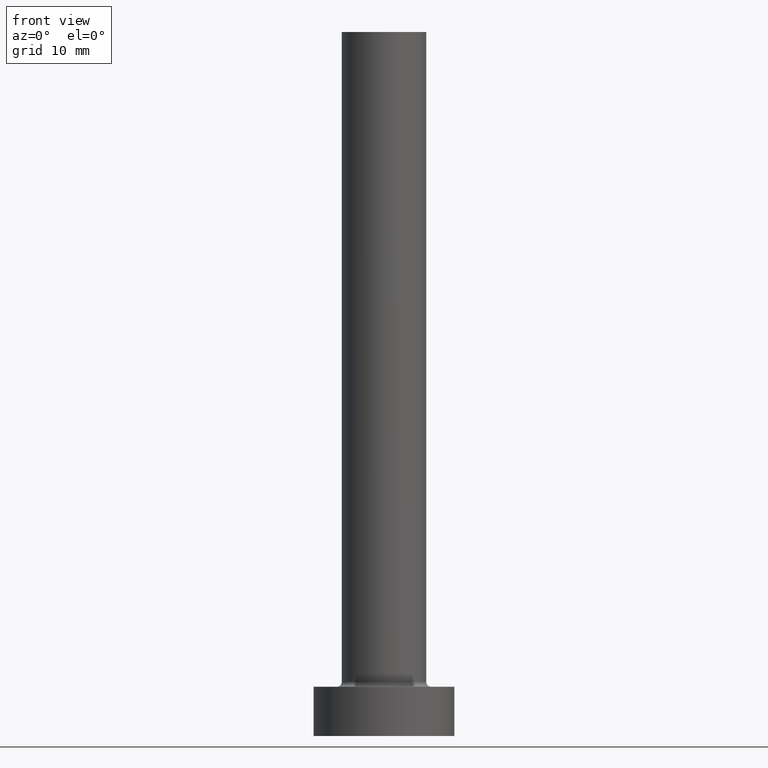
[diagram: clean part render]
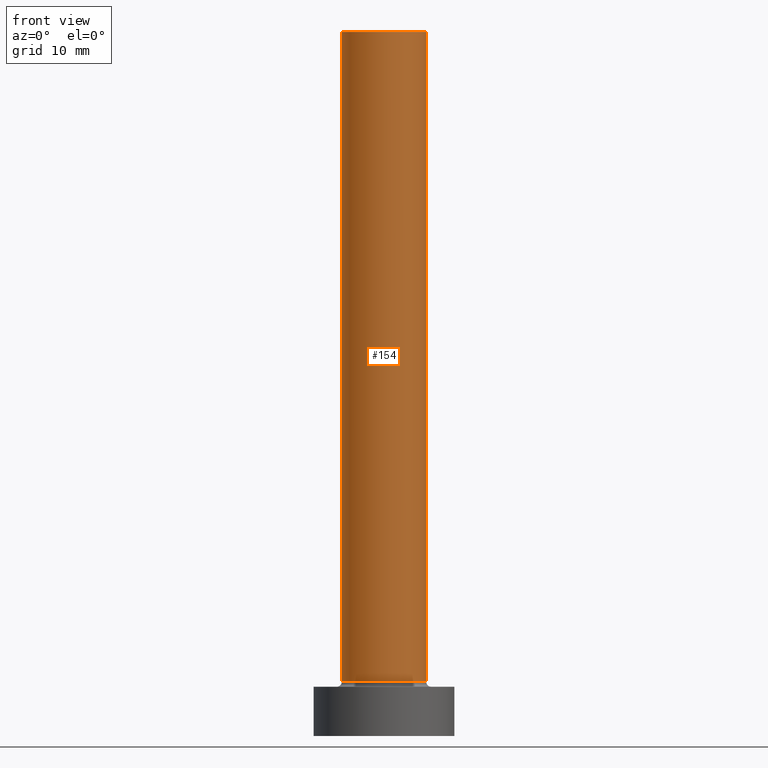
[diagram: same view with one face highlighted and labeled with its STEP entity id]
A machine part, front view. The second image highlights one B-rep face of the part: STEP entity #154.
In plain terms, the highlighted cylindrical surface (partial cylindrical patch) has radius 6 mm, axis along (-0, -0, -1).
Its self-contained STEP definition (entity closure, byte-faithful):
#8 = VERTEX_POINT ( 'NONE', #224 ) ;
#20 = ORIENTED_EDGE ( 'NONE', *, *, #203, .T. ) ;
#31 = EDGE_CURVE ( 'NONE', #139, #153, #425, .T. ) ;
#48 = VECTOR ( 'NONE', #378, 1000.000000000000000 ) ;
#70 = DIRECTION ( 'NONE',  ( 0.000000000000000000, 0.000000000000000000, 1.000000000000000000 ) ) ;
#99 = VECTOR ( 'NONE', #199, 1000.000000000000000 ) ;
#110 = CYLINDRICAL_SURFACE ( 'NONE', #133, 6.000000000000000888 ) ;
#133 = AXIS2_PLACEMENT_3D ( 'NONE', #183, #350, #161 ) ;
#136 = VERTEX_POINT ( 'NONE', #367 ) ;
#139 = VERTEX_POINT ( 'NONE', #334 ) ;
#153 = VERTEX_POINT ( 'NONE', #438 ) ;
#154 = ADVANCED_FACE ( 'NONE', ( #364 ), #110, .T. ) ;
#161 = DIRECTION ( 'NONE',  ( -1.000000000000000000, 0.000000000000000000, 0.000000000000000000 ) ) ;
#183 = CARTESIAN_POINT ( 'NONE',  ( 0.000000000000000000, 0.000000000000000000, 100.0000000000000000 ) ) ;
#192 = CARTESIAN_POINT ( 'NONE',  ( 0.000000000000000000, 0.000000000000000000, 100.0000000000000000 ) ) ;
#197 = CARTESIAN_POINT ( 'NONE',  ( -6.000000000000000888, 0.000000000000000000, 100.0000000000000000 ) ) ;
#199 = DIRECTION ( 'NONE',  ( -0.000000000000000000, -0.000000000000000000, -1.000000000000000000 ) ) ;
#202 = CARTESIAN_POINT ( 'NONE',  ( 0.000000000000000000, 0.000000000000000000, 7.699999999999998401 ) ) ;
#203 = EDGE_CURVE ( 'NONE', #139, #8, #405, .T. ) ;
#224 = CARTESIAN_POINT ( 'NONE',  ( -6.000000000000000888, 0.000000000000000000, 7.699999999999998401 ) ) ;
#233 = ORIENTED_EDGE ( 'NONE', *, *, #31, .F. ) ;
#274 = ORIENTED_EDGE ( 'NONE', *, *, #294, .T. ) ;
#276 = EDGE_LOOP ( 'NONE', ( #420, #233, #20, #274 ) ) ;
#285 = AXIS2_PLACEMENT_3D ( 'NONE', #192, #70, #430 ) ;
#294 = EDGE_CURVE ( 'NONE', #8, #136, #433, .T. ) ;
#319 = DIRECTION ( 'NONE',  ( 1.000000000000000000, 0.000000000000000000, 0.000000000000000000 ) ) ;
#334 = CARTESIAN_POINT ( 'NONE',  ( -6.000000000000000888, 0.000000000000000000, 100.0000000000000000 ) ) ;
#350 = DIRECTION ( 'NONE',  ( -0.000000000000000000, -0.000000000000000000, -1.000000000000000000 ) ) ;
#364 = FACE_OUTER_BOUND ( 'NONE', #276, .T. ) ;
#367 = CARTESIAN_POINT ( 'NONE',  ( 6.000000000000000888, 7.347880794884119736E-16, 7.699999999999998401 ) ) ;
#374 = DIRECTION ( 'NONE',  ( 0.000000000000000000, 0.000000000000000000, 1.000000000000000000 ) ) ;
#378 = DIRECTION ( 'NONE',  ( -0.000000000000000000, -0.000000000000000000, -1.000000000000000000 ) ) ;
#382 = EDGE_CURVE ( 'NONE', #153, #136, #410, .T. ) ;
#405 = LINE ( 'NONE', #197, #48 ) ;
#410 = LINE ( 'NONE', #441, #99 ) ;
#420 = ORIENTED_EDGE ( 'NONE', *, *, #382, .F. ) ;
#425 = CIRCLE ( 'NONE', #285, 6.000000000000000888 ) ;
#430 = DIRECTION ( 'NONE',  ( 1.000000000000000000, 0.000000000000000000, 0.000000000000000000 ) ) ;
#433 = CIRCLE ( 'NONE', #452, 6.000000000000000888 ) ;
#438 = CARTESIAN_POINT ( 'NONE',  ( 6.000000000000000888, 7.347880794884119736E-16, 100.0000000000000000 ) ) ;
#441 = CARTESIAN_POINT ( 'NONE',  ( 6.000000000000000888, 7.347880794884119736E-16, 100.0000000000000000 ) ) ;
#452 = AXIS2_PLACEMENT_3D ( 'NONE', #202, #374, #319 ) ;